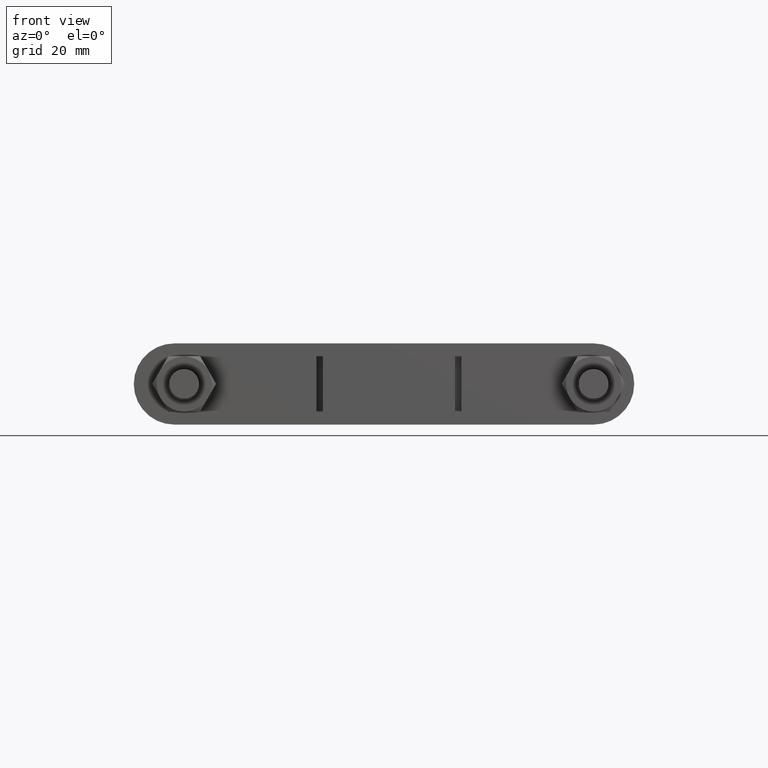
[diagram: clean part render]
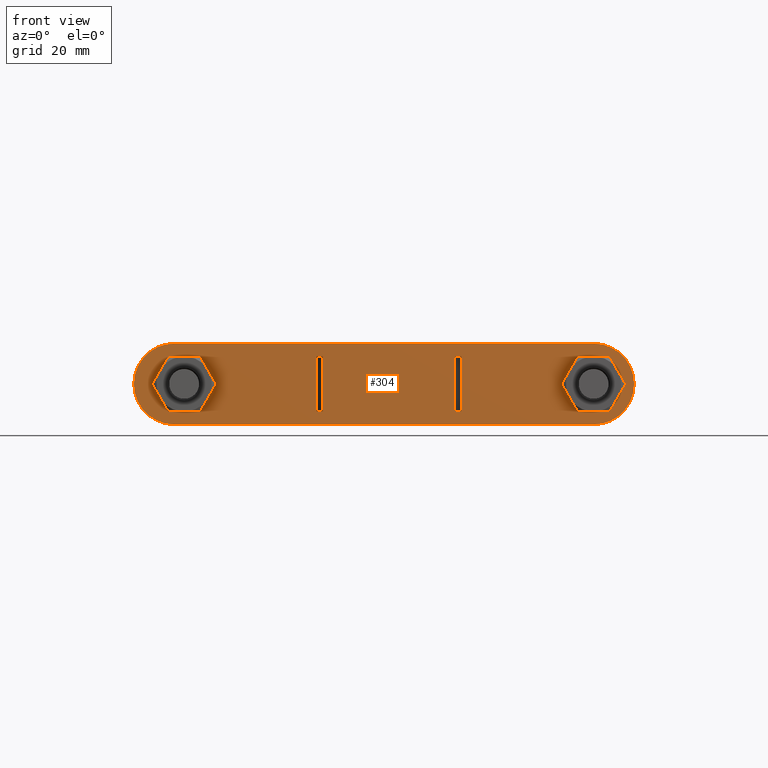
[diagram: same view with one face highlighted and labeled with its STEP entity id]
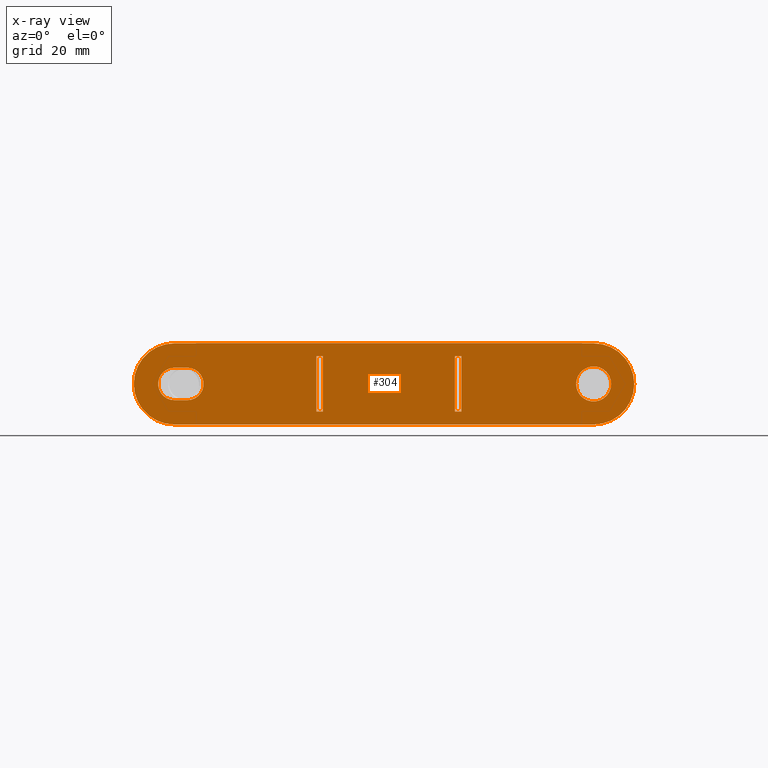
[diagram: x-ray of the same camera — body ghosted, the highlighted face saturated]
A machine part, front view. The second image highlights one B-rep face of the part: STEP entity #304.
The next image is the same camera in x-ray: the body ghosted, the highlighted face saturated — about 0% of this face is hidden behind the body in this view.
In plain terms, the highlighted planar face has unit normal (0, 1, 0).
Its self-contained STEP definition (entity closure, byte-faithful):
#304 = ADVANCED_FACE( '', ( #465, #466, #467, #468, #469 ), #470, .F. );
#465 = FACE_BOUND( '', #1372, .T. );
#466 = FACE_BOUND( '', #1373, .T. );
#467 = FACE_OUTER_BOUND( '', #1374, .T. );
#468 = FACE_BOUND( '', #1375, .T. );
#469 = FACE_BOUND( '', #1376, .T. );
#470 = PLANE( '', #1377 );
#1372 = EDGE_LOOP( '', ( #1797, #1798, #1799, #1800 ) );
#1373 = EDGE_LOOP( '', ( #1801, #1802, #1803, #1804 ) );
#1374 = EDGE_LOOP( '', ( #1805, #1806, #1807, #1808, #1809, #1810 ) );
#1375 = EDGE_LOOP( '', ( #1811 ) );
#1376 = EDGE_LOOP( '', ( #1812, #1813, #1814, #1815 ) );
#1377 = AXIS2_PLACEMENT_3D( '', #1816, #1817, #1818 );
#1797 = ORIENTED_EDGE( '', *, *, #2430, .F. );
#1798 = ORIENTED_EDGE( '', *, *, #2443, .T. );
#1799 = ORIENTED_EDGE( '', *, *, #2444, .T. );
#1800 = ORIENTED_EDGE( '', *, *, #2434, .F. );
#1801 = ORIENTED_EDGE( '', *, *, #2445, .F. );
#1802 = ORIENTED_EDGE( '', *, *, #2446, .F. );
#1803 = ORIENTED_EDGE( '', *, *, #2447, .T. );
#1804 = ORIENTED_EDGE( '', *, *, #2448, .T. );
#1805 = ORIENTED_EDGE( '', *, *, #2425, .F. );
#1806 = ORIENTED_EDGE( '', *, *, #2449, .F. );
#1807 = ORIENTED_EDGE( '', *, *, #2450, .F. );
#1808 = ORIENTED_EDGE( '', *, *, #2451, .F. );
#1809 = ORIENTED_EDGE( '', *, *, #2452, .F. );
#1810 = ORIENTED_EDGE( '', *, *, #2453, .F. );
#1811 = ORIENTED_EDGE( '', *, *, #2454, .T. );
#1812 = ORIENTED_EDGE( '', *, *, #2440, .F. );
#1813 = ORIENTED_EDGE( '', *, *, #2442, .F. );
#1814 = ORIENTED_EDGE( '', *, *, #2455, .F. );
#1815 = ORIENTED_EDGE( '', *, *, #2437, .F. );
#1816 = CARTESIAN_POINT( '', ( -66.0000000000000, 35.3000000000000, 6.64905063017107E-010 ) );
#1817 = DIRECTION( '', ( 2.51087312473002E-018, 1.00000000000000, 5.34725563500670E-016 ) );
#1818 = DIRECTION( '', ( 1.00743302589043E-011, -5.34725563500696E-016, 1.00000000000000 ) );
#2425 = EDGE_CURVE( '', #2709, #2711, #2712, .T. );
#2430 = EDGE_CURVE( '', #2719, #2715, #2721, .T. );
#2434 = EDGE_CURVE( '', #2715, #2727, #2728, .T. );
#2437 = EDGE_CURVE( '', #2730, #2732, #2733, .T. );
#2440 = EDGE_CURVE( '', #2735, #2730, #2737, .T. );
#2442 = EDGE_CURVE( '', #2738, #2735, #2740, .T. );
#2443 = EDGE_CURVE( '', #2719, #2741, #2742, .T. );
#2444 = EDGE_CURVE( '', #2741, #2727, #2743, .T. );
#2445 = EDGE_CURVE( '', #2744, #2745, #2746, .T. );
#2446 = EDGE_CURVE( '', #2747, #2744, #2748, .T. );
#2447 = EDGE_CURVE( '', #2747, #2749, #2750, .T. );
#2448 = EDGE_CURVE( '', #2749, #2745, #2751, .T. );
#2449 = EDGE_CURVE( '', #2752, #2709, #2753, .T. );
#2450 = EDGE_CURVE( '', #2754, #2752, #2755, .T. );
#2451 = EDGE_CURVE( '', #2756, #2754, #2757, .T. );
#2452 = EDGE_CURVE( '', #2758, #2756, #2759, .T. );
#2453 = EDGE_CURVE( '', #2711, #2758, #2760, .T. );
#2454 = EDGE_CURVE( '', #2761, #2761, #2762, .T. );
#2455 = EDGE_CURVE( '', #2732, #2738, #2763, .T. );
#2709 = VERTEX_POINT( '', #3355 );
#2711 = VERTEX_POINT( '', #3358 );
#2712 = CIRCLE( '', #3359, 12.5000000000000 );
#2715 = VERTEX_POINT( '', #3363 );
#2719 = VERTEX_POINT( '', #3369 );
#2721 = LINE( '', #3372, #3373 );
#2727 = VERTEX_POINT( '', #3382 );
#2728 = LINE( '', #3383, #3384 );
#2730 = VERTEX_POINT( '', #3387 );
#2732 = VERTEX_POINT( '', #3390 );
#2733 = LINE( '', #3391, #3392 );
#2735 = VERTEX_POINT( '', #3395 );
#2737 = CIRCLE( '', #3398, 5.00000000000000 );
#2738 = VERTEX_POINT( '', #3399 );
#2740 = LINE( '', #3402, #3403 );
#2741 = VERTEX_POINT( '', #3404 );
#2742 = LINE( '', #3405, #3406 );
#2743 = LINE( '', #3407, #3408 );
#2744 = VERTEX_POINT( '', #3409 );
#2745 = VERTEX_POINT( '', #3410 );
#2746 = LINE( '', #3411, #3412 );
#2747 = VERTEX_POINT( '', #3413 );
#2748 = LINE( '', #3414, #3415 );
#2749 = VERTEX_POINT( '', #3416 );
#2750 = LINE( '', #3417, #3418 );
#2751 = LINE( '', #3419, #3420 );
#2752 = VERTEX_POINT( '', #3421 );
#2753 = CIRCLE( '', #3422, 12.5000000000000 );
#2754 = VERTEX_POINT( '', #3423 );
#2755 = LINE( '', #3424, #3425 );
#2756 = VERTEX_POINT( '', #3426 );
#2757 = CIRCLE( '', #3427, 12.5000000000000 );
#2758 = VERTEX_POINT( '', #3428 );
#2759 = CIRCLE( '', #3429, 12.5000000000000 );
#2760 = LINE( '', #3430, #3431 );
#2761 = VERTEX_POINT( '', #3432 );
#2762 = CIRCLE( '', #3433, 5.40000000000000 );
#2763 = CIRCLE( '', #3434, 5.00000000000000 );
#3355 = CARTESIAN_POINT( '', ( -78.5000000000000, 35.3000000000000, 7.90837660700362E-010 ) );
#3358 = CARTESIAN_POINT( '', ( -65.9999999998741, 35.3000000000000, 12.5000000006649 ) );
#3359 = AXIS2_PLACEMENT_3D( '', #3969, #3970, #3971 );
#3363 = CARTESIAN_POINT( '', ( 22.3000000000856, 35.3000000000000, 8.49999999977534 ) );
#3369 = CARTESIAN_POINT( '', ( 22.2999999999144, 35.3000000000000, -8.50000000022466 ) );
#3372 = CARTESIAN_POINT( '', ( 22.2999999999144, 35.3000000000000, -8.50000000022466 ) );
#3373 = VECTOR( '', #3976, 1000.00000000000 );
#3382 = CARTESIAN_POINT( '', ( 20.3000000000856, 35.3000000000000, 8.49999999979549 ) );
#3383 = CARTESIAN_POINT( '', ( 22.3000000000856, 35.3000000000000, 8.49999999977534 ) );
#3384 = VECTOR( '', #3980, 1000.00000000000 );
#3387 = CARTESIAN_POINT( '', ( -66.0000000000504, 35.2999984999318, -4.99999999933509 ) );
#3390 = CARTESIAN_POINT( '', ( -62.0000000000504, 35.2999984999318, -4.99999999937539 ) );
#3391 = CARTESIAN_POINT( '', ( -66.0000000000504, 35.2999984999318, -4.99999999933509 ) );
#3392 = VECTOR( '', #3983, 1000.00000000000 );
#3395 = CARTESIAN_POINT( '', ( -65.9999999999496, 35.2999984999318, 5.00000000066491 ) );
#3398 = AXIS2_PLACEMENT_3D( '', #3986, #3987, #3988 );
#3399 = CARTESIAN_POINT( '', ( -61.9999999999496, 35.2999984999318, 5.00000000062461 ) );
#3402 = CARTESIAN_POINT( '', ( -61.9999999999496, 35.2999984999318, 5.00000000062461 ) );
#3403 = VECTOR( '', #3990, 1000.00000000000 );
#3404 = CARTESIAN_POINT( '', ( 20.2999999999144, 35.3000000000000, -8.50000000020451 ) );
#3405 = CARTESIAN_POINT( '', ( 22.2999999999144, 35.3000000000000, -8.50000000022466 ) );
#3406 = VECTOR( '', #3991, 1000.00000000000 );
#3407 = CARTESIAN_POINT( '', ( 20.2999999999144, 35.3000000000000, -8.50000000020451 ) );
#3408 = VECTOR( '', #3992, 1000.00000000000 );
#3409 = CARTESIAN_POINT( '', ( -20.3000000000857, 35.3000000000000, -8.49999999979549 ) );
#3410 = CARTESIAN_POINT( '', ( -20.2999999999144, 35.3000000000000, 8.50000000020451 ) );
#3411 = CARTESIAN_POINT( '', ( -20.3000000000857, 35.3000000000000, -8.49999999979549 ) );
#3412 = VECTOR( '', #3993, 1000.00000000000 );
#3413 = CARTESIAN_POINT( '', ( -22.3000000000857, 35.3000000000000, -8.49999999977535 ) );
#3414 = CARTESIAN_POINT( '', ( -22.3000000000856, 35.3000000000000, -8.49999999977535 ) );
#3415 = VECTOR( '', #3994, 1000.00000000000 );
#3416 = CARTESIAN_POINT( '', ( -22.2999999999144, 35.3000000000000, 8.50000000022466 ) );
#3417 = CARTESIAN_POINT( '', ( -22.3000000000857, 35.3000000000000, -8.49999999977535 ) );
#3418 = VECTOR( '', #3995, 1000.00000000000 );
#3419 = CARTESIAN_POINT( '', ( -22.2999999999144, 35.3000000000000, 8.50000000022466 ) );
#3420 = VECTOR( '', #3996, 1000.00000000000 );
#3421 = CARTESIAN_POINT( '', ( -66.0000000001260, 35.3000000000000, -12.4999999993351 ) );
#3422 = AXIS2_PLACEMENT_3D( '', #3997, #3998, #3999 );
#3423 = CARTESIAN_POINT( '', ( 62.9999999998741, 35.3000000000000, -12.5000000006347 ) );
#3424 = CARTESIAN_POINT( '', ( 62.9999999998740, 35.3000000000000, -12.5000000006347 ) );
#3425 = VECTOR( '', #4000, 1000.00000000000 );
#3426 = CARTESIAN_POINT( '', ( 75.5000000000000, 35.3000000000000, -7.60612668617846E-010 ) );
#3427 = AXIS2_PLACEMENT_3D( '', #4001, #4002, #4003 );
#3428 = CARTESIAN_POINT( '', ( 63.0000000001259, 35.3000000000000, 12.4999999993653 ) );
#3429 = AXIS2_PLACEMENT_3D( '', #4004, #4005, #4006 );
#3430 = CARTESIAN_POINT( '', ( -65.9999999998741, 35.3000000000000, 12.5000000006649 ) );
#3431 = VECTOR( '', #4007, 1000.00000000000 );
#3432 = CARTESIAN_POINT( '', ( 68.4000000000000, 35.3000000000000, -6.89083189056150E-010 ) );
#3433 = AXIS2_PLACEMENT_3D( '', #4008, #4009, #4010 );
#3434 = AXIS2_PLACEMENT_3D( '', #4011, #4012, #4013 );
#3969 = CARTESIAN_POINT( '', ( -66.0000000000000, 35.3000000000000, 6.64905063017107E-010 ) );
#3970 = DIRECTION( '', ( 2.51087312473002E-018, 1.00000000000000, 5.34725563500670E-016 ) );
#3971 = DIRECTION( '', ( -1.00000000000000, 2.51087311934309E-018, 1.00741914810262E-011 ) );
#3976 = DIRECTION( '', ( 1.00742318675846E-011, -3.23724697550540E-016, 1.00000000000000 ) );
#3980 = DIRECTION( '', ( -1.00000000000000, 6.35333853940688E-017, 1.00743302589043E-011 ) );
#3983 = DIRECTION( '', ( 1.00000000000000, -2.51087311934302E-018, -1.00743302589043E-011 ) );
#3986 = CARTESIAN_POINT( '', ( -66.0000000000000, 35.2999984999318, 6.64906797739781E-010 ) );
#3987 = DIRECTION( '', ( -2.51087312473002E-018, -1.00000000000000, -5.34725563500670E-016 ) );
#3988 = DIRECTION( '', ( 1.00743302589043E-011, -5.34725563500696E-016, 1.00000000000000 ) );
#3990 = DIRECTION( '', ( -1.00000000000000, 2.51087311934302E-018, 1.00743302589043E-011 ) );
#3991 = DIRECTION( '', ( -1.00000000000000, 6.35333853940688E-017, 1.00743302589043E-011 ) );
#3992 = DIRECTION( '', ( 1.00742318675846E-011, -3.23724697550540E-016, 1.00000000000000 ) );
#3993 = DIRECTION( '', ( 1.00744286502239E-011, -3.23724697550540E-016, 1.00000000000000 ) );
#3994 = DIRECTION( '', ( 1.00000000000000, -6.39489962268549E-017, -1.00743302589043E-011 ) );
#3995 = DIRECTION( '', ( 1.00744286502239E-011, -3.23724697550540E-016, 1.00000000000000 ) );
#3996 = DIRECTION( '', ( 1.00000000000000, -6.39489962268549E-017, -1.00743302589043E-011 ) );
#3997 = CARTESIAN_POINT( '', ( -66.0000000000000, 35.3000000000000, 6.64908532464059E-010 ) );
#3998 = DIRECTION( '', ( 2.51087312473002E-018, 1.00000000000000, 5.34725563500670E-016 ) );
#3999 = DIRECTION( '', ( -1.00743302589043E-011, 5.34725563500696E-016, -1.00000000000000 ) );
#4000 = DIRECTION( '', ( -1.00000000000000, 2.51087311934302E-018, 1.00743302589043E-011 ) );
#4001 = CARTESIAN_POINT( '', ( 63.0000000000000, 35.3000000000000, -6.34680070934591E-010 ) );
#4002 = DIRECTION( '', ( 2.51087312473002E-018, 1.00000000000000, 5.34725563500670E-016 ) );
#4003 = DIRECTION( '', ( 1.00000000000000, -2.51087311934309E-018, -1.00741914810262E-011 ) );
#4004 = CARTESIAN_POINT( '', ( 63.0000000000000, 35.3000000000000, -6.34683540381543E-010 ) );
#4005 = DIRECTION( '', ( 2.51087312473002E-018, 1.00000000000000, 5.34725563500670E-016 ) );
#4006 = DIRECTION( '', ( 1.00743302589043E-011, -5.34725563500696E-016, 1.00000000000000 ) );
#4007 = DIRECTION( '', ( 1.00000000000000, -2.51087311934302E-018, -1.00743302589043E-011 ) );
#4008 = CARTESIAN_POINT( '', ( 63.0000000000000, 35.3000000000000, -6.34681805658067E-010 ) );
#4009 = DIRECTION( '', ( 2.51087312473002E-018, 1.00000000000000, 5.34725563500670E-016 ) );
#4010 = DIRECTION( '', ( 1.00000000000000, -2.51087311934302E-018, -1.00743302589043E-011 ) );
#4011 = CARTESIAN_POINT( '', ( -62.0000000000000, 35.2999984999318, 6.24609476704164E-010 ) );
#4012 = DIRECTION( '', ( -2.51087312473002E-018, -1.00000000000000, -5.34725563500670E-016 ) );
#4013 = DIRECTION( '', ( -1.00743302589043E-011, 5.34725563500696E-016, -1.00000000000000 ) );